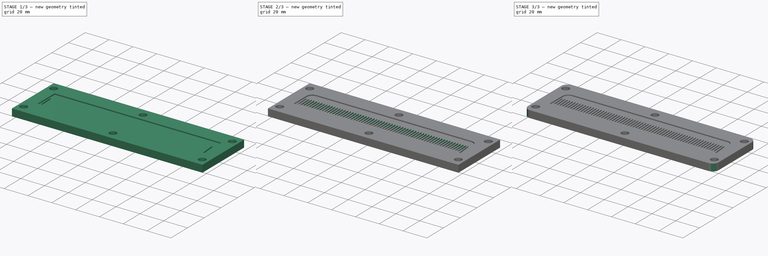
[diagram: build sequence overview — one tinted view per stage of 3, left to right]
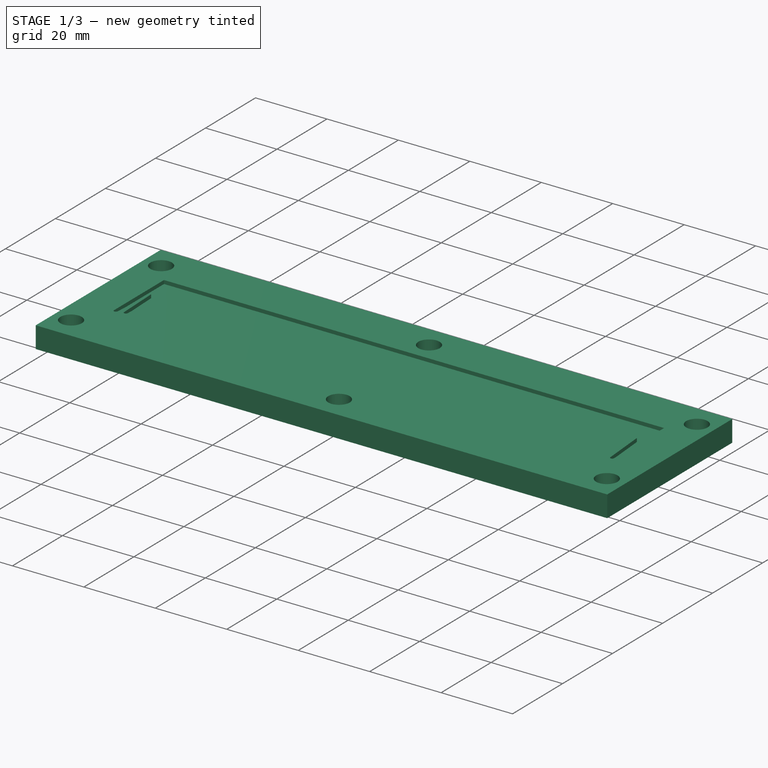
[diagram: stage 1 of 3 — iso view after this stage's code; geometry added in this stage tinted green]
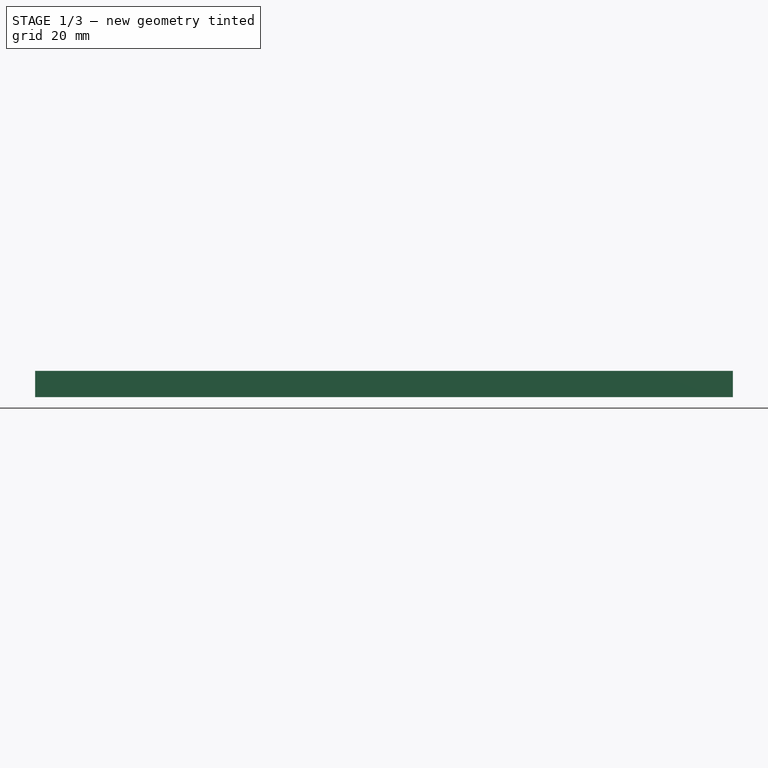
[diagram: stage 1 of 3 — front view after this stage's code; geometry added in this stage tinted green]
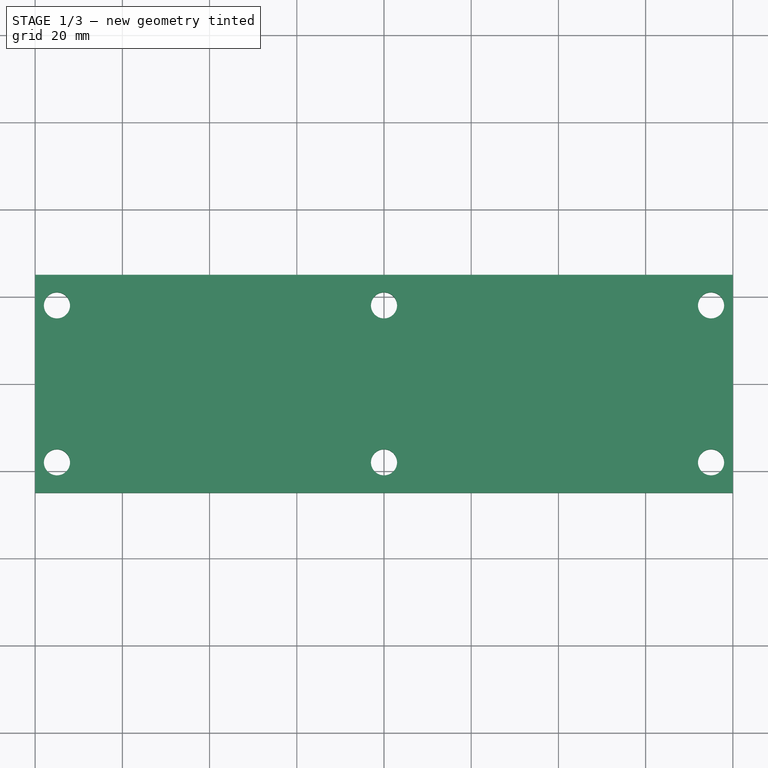
[diagram: stage 1 of 3 — top view after this stage's code; geometry added in this stage tinted green]
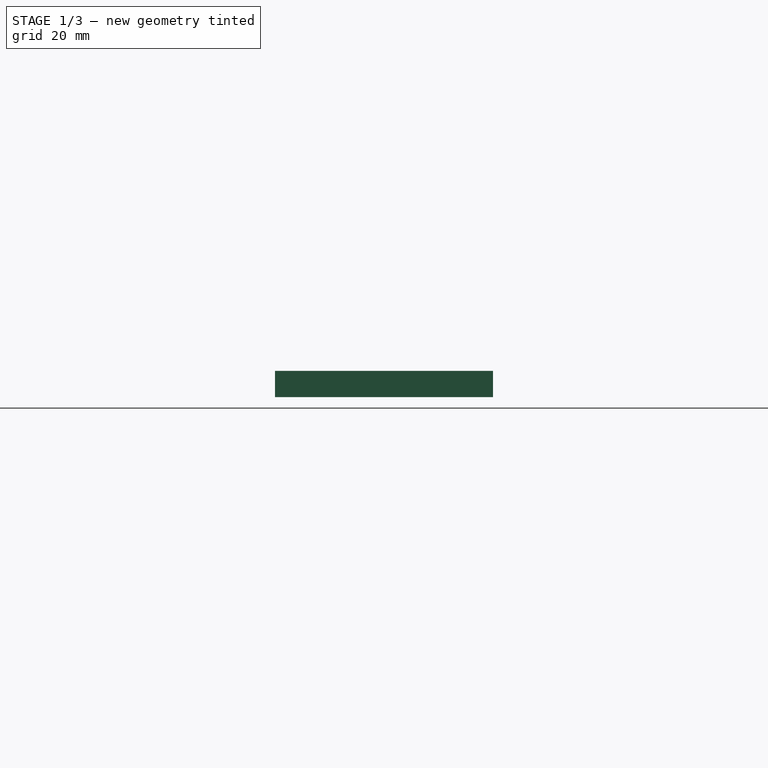
[diagram: stage 1 of 3 — right view after this stage's code; geometry added in this stage tinted green]
FCSTD DOCUMENT  (FreeCAD 0.19R24291 (Git))
Label: peigne
License: All rights reserved
LicenseURL: http://en.wikipedia.org/wiki/All_rights_reserved
objects: PartDesign::Fillet×4, Sketcher::SketchObject×3, PartDesign::Pocket×2, PartDesign::Pad×1, PartDesign::LinearPattern×1, PartDesign::Body×1
note: 19 computed .brp shape members not serialized (recipe doc carries the construction recipe); baked Part::Feature solids carry a one-line shape summary decoded from their .brp

FEATURE [Sketcher::SketchObject] Sketch
  FullyConstrained = true
  MapMode = 5
  Support = -> [XY_Plane]
  sketch-geometry (10):
    g0: LineSegment StartX=-80 StartY=25 StartZ=0 EndX=80 EndY=25 EndZ=0
    g1: LineSegment StartX=80 StartY=25 StartZ=0 EndX=80 EndY=-25 EndZ=0
    g2: LineSegment StartX=80 StartY=-25 StartZ=0 EndX=-80 EndY=-25 EndZ=0
    g3: LineSegment StartX=-80 StartY=-25 StartZ=0 EndX=-80 EndY=25 EndZ=0
    g4: Circle CenterX=-75 CenterY=18 CenterZ=0 NormalX=0 NormalY=0 NormalZ=1 AngleXU=0 Radius=3
    g5: Circle CenterX=75 CenterY=18 CenterZ=0 NormalX=0 NormalY=0 NormalZ=1 AngleXU=0 Radius=3
    g6: Circle CenterX=75 CenterY=-18 CenterZ=0 NormalX=0 NormalY=0 NormalZ=1 AngleXU=0 Radius=3
    g7: Circle CenterX=-75 CenterY=-18 CenterZ=0 NormalX=0 NormalY=0 NormalZ=1 AngleXU=0 Radius=3
    g8: Circle CenterX=0 CenterY=-18 CenterZ=0 NormalX=0 NormalY=0 NormalZ=1 AngleXU=0 Radius=3
    g9: Circle CenterX=0 CenterY=18 CenterZ=0 NormalX=0 NormalY=0 NormalZ=1 AngleXU=0 Radius=3
  constraints (27):
    c: Coincident(g0,g1)
    c: Coincident(g1,g2)
    c: Coincident(g2,g3)
    c: Coincident(g3,g0)
    c: Horizontal(g0)
    c: Horizontal(g2)
    c: Vertical(g1)
    c: Vertical(g3)
    c: Symmetric(g1,g0,g-1)
    c: DistanceY(g3,g3) = 50
    c: DistanceX(g0,g0) = 160
    c: PointOnObject(g8,g-2)
    c: PointOnObject(g9,g-2)
    c: Diameter(g4) = 6
    c: Equal(g4,g7)
    c: Equal(g4,g8)
    c: Equal(g4,g9)
    c: Equal(g4,g5)
    c: Equal(g4,g6)
    c: Symmetric(g4,g6,g-1)
    c: Symmetric(g7,g5,g-1)
    c: Horizontal(g4,g9)
    c: Horizontal(g9,g5)
    c: Horizontal(g7,g8)
    c: Vertical(g4,g7)
    c: DistanceY(g-1,g5) = 18
    c: DistanceX(g-1,g5) = 75
FEATURE [PartDesign::Pad] Pad
  Direction = (1,1,1)
  Length = 6
  Length2 = 100
  Profile = -> Sketch
  Type = 0
FEATURE [Sketcher::SketchObject] Sketch001
  FullyConstrained = true
  MapMode = 5
  Placement = pos=(0,0,6) rot=(0,0,1;0rad)
  Support = -> [Pad]
  sketch-geometry (8):
    g0: LineSegment StartX=-70 StartY=-8 StartZ=0 EndX=-70 EndY=12 EndZ=0
    g1: LineSegment StartX=-70 StartY=12 StartZ=0 EndX=70 EndY=12 EndZ=0
    g2: LineSegment StartX=70 StartY=12 StartZ=0 EndX=70 EndY=-8 EndZ=0
    g3: LineSegment StartX=68 StartY=4 StartZ=0 EndX=-68 EndY=4 EndZ=0
    g4: LineSegment StartX=-68 StartY=4 StartZ=0 EndX=-69.0017 EndY=-8.04145 EndZ=0
    g5: ArcOfCircle CenterX=-69.5 CenterY=-8 CenterZ=0 NormalX=0 NormalY=0 NormalZ=1 AngleXU=0 Radius=0.5 StartAngle=3.14159 EndAngle=6.20019
    g6: LineSegment StartX=68 StartY=4 StartZ=0 EndX=69.0017 EndY=-8.04145 EndZ=0
    g7: ArcOfCircle CenterX=69.5 CenterY=-8 CenterZ=0 NormalX=0 NormalY=0 NormalZ=1 AngleXU=0 Radius=0.5 StartAngle=3.22459 EndAngle=6.28319
  constraints (22):
    c: Vertical(g0)
    c: Coincident(g0,g1)
    c: Coincident(g1,g2)
    c: Horizontal(g0,g2)
    c: DistanceY(g0,g0) = 20
    c: Symmetric(g3,g3,g-2)
    c: Vertical(g2)
    c: Symmetric(g1,g0,g-2)
    c: DistanceX(g0,g3) = 2
    c: DistanceY(g3,g0) = 8
    c: DistanceX(g0,g-1) = 70
    c: Coincident(g3,g4)
    c: Diameter(g5) = 1
    c: Tangent(g5,g0) = 1.5708
    c: Tangent(g5,g4) = 1.5708
    c: Coincident(g6,g3)
    c: Coincident(g7,g6)
    c: Coincident(g7,g2)
    c: Tangent(g6,g7) = -1.5708
    c: Tangent(g2,g7) = 1.5708
    c: Diameter(g7) = 1
    c: DistanceY(g-1,g3) = 4
FEATURE [PartDesign::Pocket] Pocket
  BaseFeature = -> Pad
  Length = 1
  Length2 = 100
  Profile = -> Sketch001
  Type = 0
FEATURE [Sketcher::SketchObject] Sketch002
  FullyConstrained = true
  MapMode = 5
  Placement = pos=(0,0,6) rot=(0,0,1;0rad)
  sketch-geometry (4):
    g0: LineSegment StartX=-68 StartY=4 StartZ=0 EndX=-67.5 EndY=-7.5217 EndZ=0
    g1: LineSegment StartX=-68 StartY=4 StartZ=0 EndX=-66 EndY=4 EndZ=0
    g2: LineSegment StartX=-66 StartY=4 StartZ=0 EndX=-66.5 EndY=-7.5217 EndZ=0
    g3: ArcOfCircle CenterX=-67 CenterY=-7.5 CenterZ=0 NormalX=0 NormalY=0 NormalZ=1 AngleXU=0 Radius=0.500471 StartAngle=3.18496 EndAngle=6.23982
  constraints (11):
    c: Coincident(g0,g1)
    c: Coincident(g1,g2)
    c: Horizontal(g1)
    c: DistanceX(g1,g1) = 2
    c: DistanceX(g0,g3) = 1
    c: DistanceX(g1,g-1) = 66
    c: Tangent(g3,g0) = -1.5708
    c: Tangent(g3,g2) = 1.5708
    c: DistanceX(g0,g2) = 1
    c: DistanceY(g3,g1) = 11.5
    c: DistanceY(g-1,g1) = 4
FEATURE [PartDesign::Pocket] Pocket001
  BaseFeature = -> Pocket
  Length = 1
  Length2 = 100
  Profile = -> Sketch002
  Type = 0
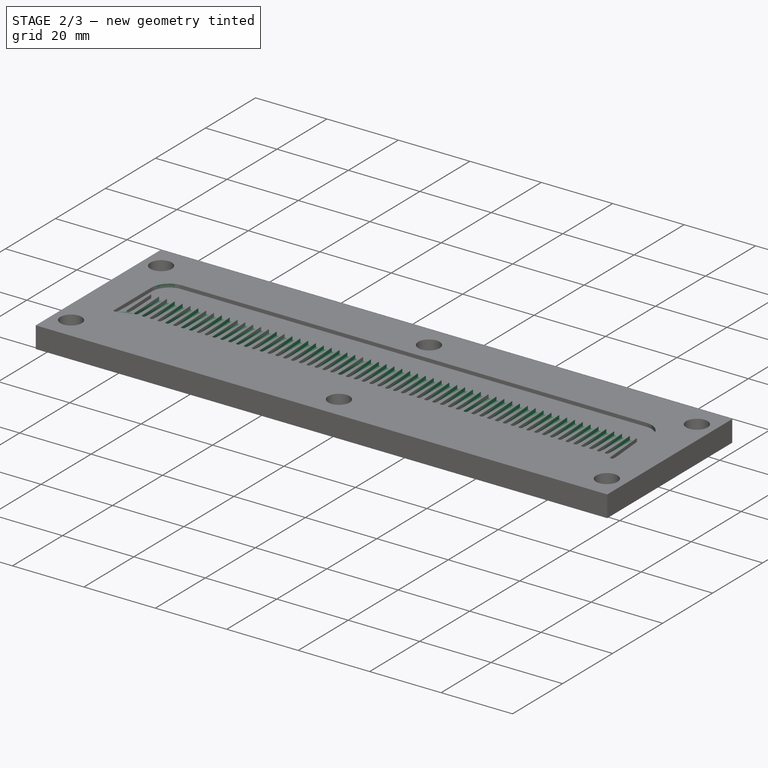
[diagram: stage 2 of 3 — iso view after this stage's code; geometry added in this stage tinted green]
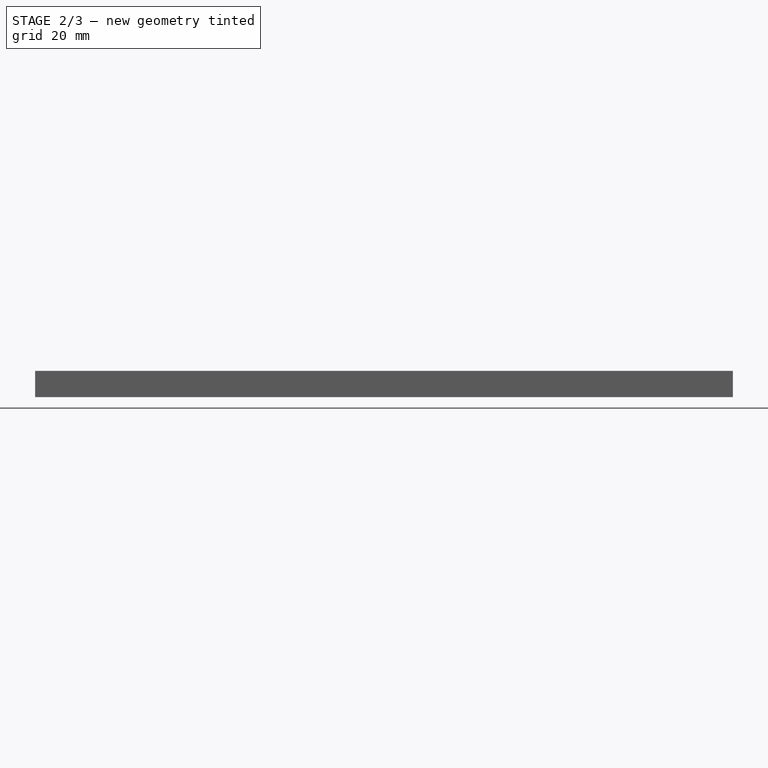
[diagram: stage 2 of 3 — front view after this stage's code; geometry added in this stage tinted green]
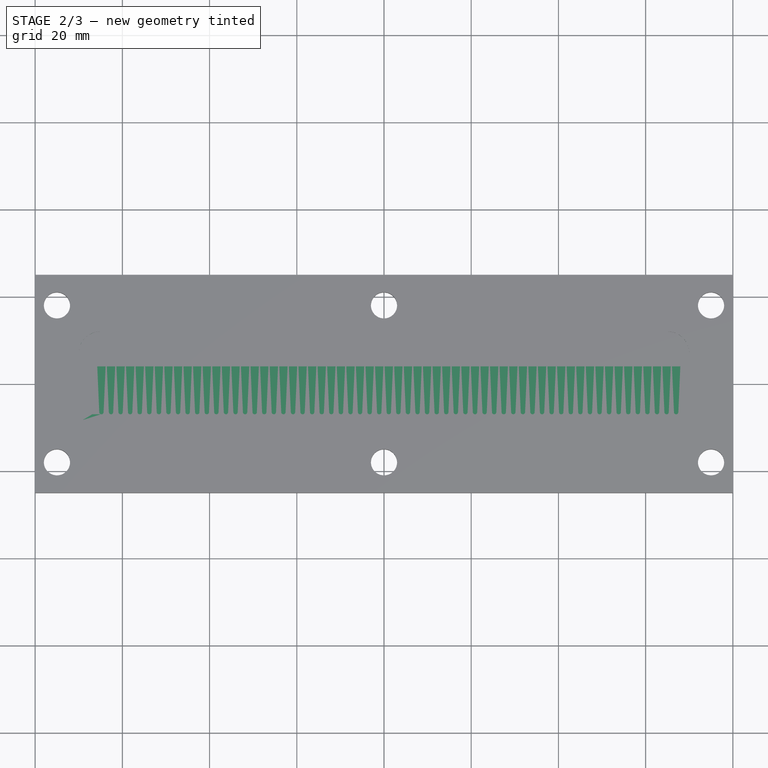
[diagram: stage 2 of 3 — top view after this stage's code; geometry added in this stage tinted green]
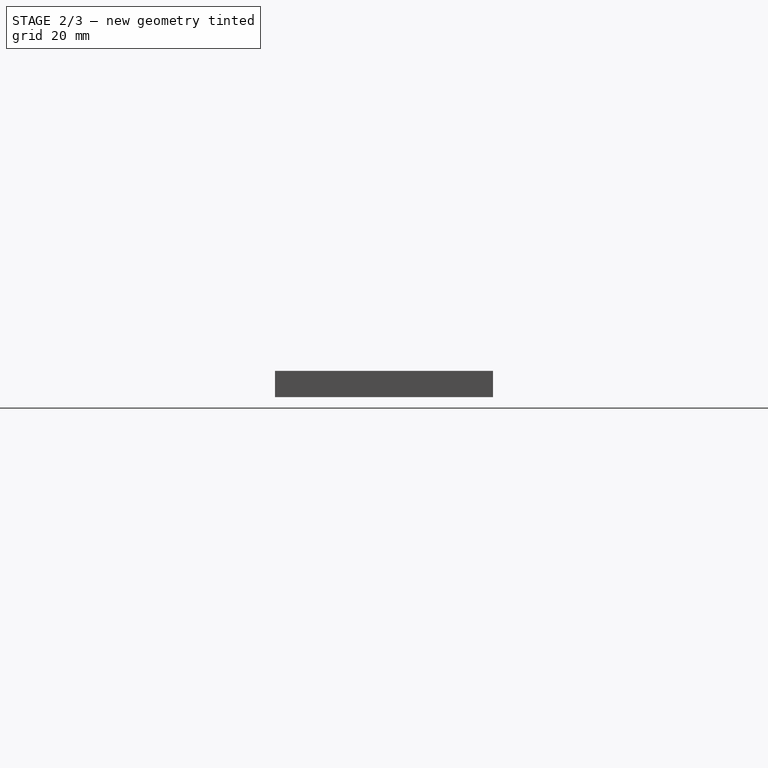
[diagram: stage 2 of 3 — right view after this stage's code; geometry added in this stage tinted green]
FEATURE [PartDesign::LinearPattern] LinearPattern
  BaseFeature = -> Pocket001
  Direction = -> Sketch002 [H_Axis]
  Length = 134
  Occurrences = 62
  Originals = -> [Pocket001]
FEATURE [PartDesign::Fillet] Fillet
  Base = -> LinearPattern [Edge790,Edge792]
  BaseFeature = -> LinearPattern
  Radius = 5
  SupportTransform = false
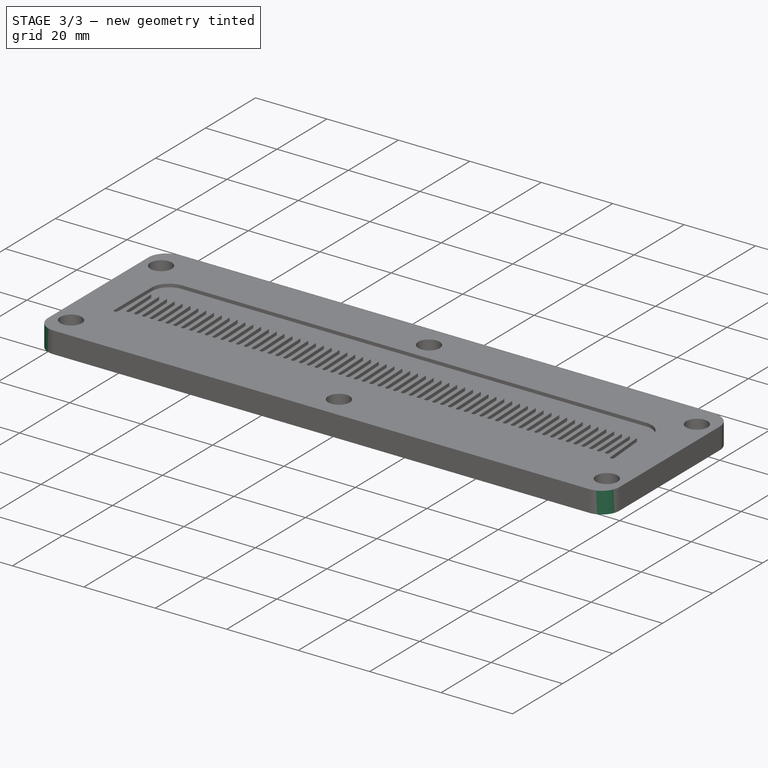
[diagram: stage 3 of 3 — iso view after this stage's code; geometry added in this stage tinted green]
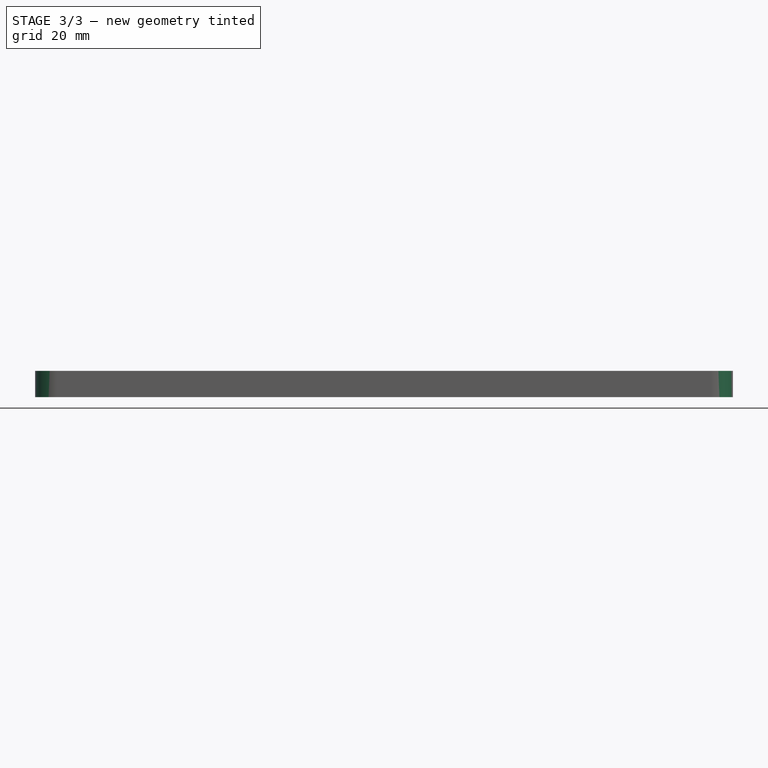
[diagram: stage 3 of 3 — front view after this stage's code; geometry added in this stage tinted green]
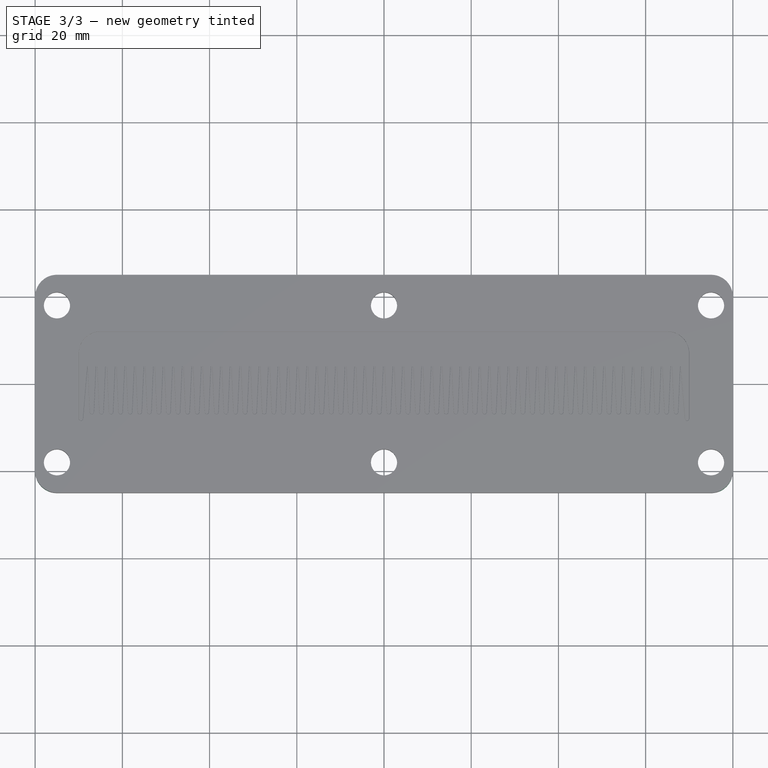
[diagram: stage 3 of 3 — top view after this stage's code; geometry added in this stage tinted green]
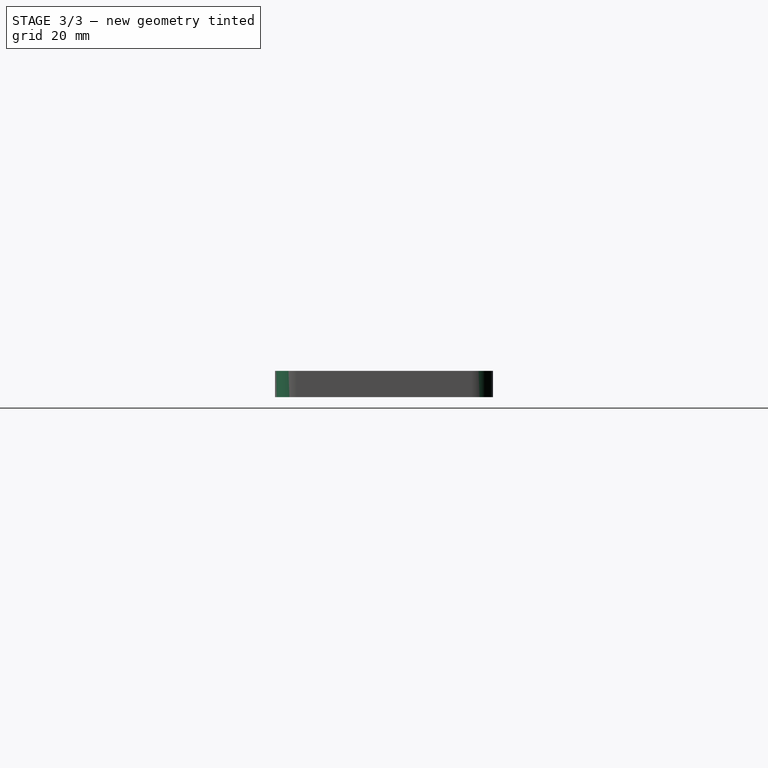
[diagram: stage 3 of 3 — right view after this stage's code; geometry added in this stage tinted green]
FEATURE [PartDesign::Fillet] Fillet001
  Base = -> Fillet [Edge785,Edge788,Edge790,Edge786]
  BaseFeature = -> Fillet
  Radius = 5
  SupportTransform = false
FEATURE [PartDesign::Fillet] Fillet002
  Base = -> Fillet001 [Edge291,Edge293,Edge297,Edge301,Edge305]
  BaseFeature = -> Fillet001
  Radius = 0.1
  SupportTransform = false
FEATURE [PartDesign::Fillet] Fillet003
  Base = -> Fillet002 [Edge607,Edge600,Edge593,Edge586,Edge578,Edge571,Edge614,Edge621,Edge628,Edge635,Edge642,Edge649,Edge656,Edge663,Edge670,Edge677,Edge684,Edge691,Edge698,Edge705,Edge712,Edge719,Edge726,Edge733,Edge740,Edge747,Edge754,Edge761,Edge768,Edge775,Edge782,Edge789,Edge796,Edge803,Edge810,Edge817,Edge824,Edge831,Edge838,Edge845,+146 more]
  BaseFeature = -> Fillet002
  Radius = 0.1
  SupportTransform = false
FEATURE [PartDesign::Body] Body
  Group = -> [Sketch,Pad,Sketch001,Pocket,Sketch002,Pocket001,LinearPattern,Fillet,Fillet001,Fillet002,Fillet003]
  Origin = -> Origin
  Tip = -> Fillet003
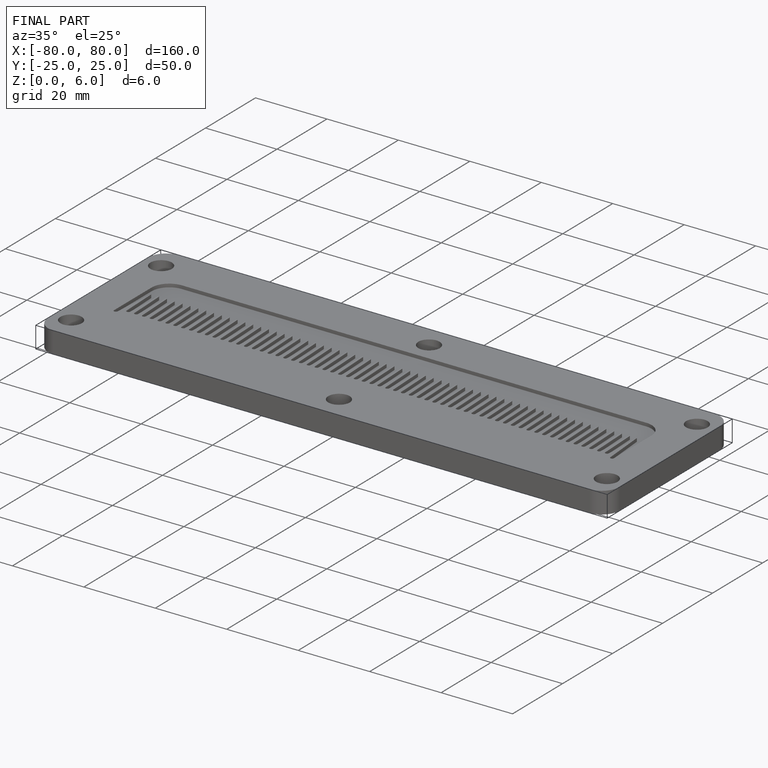
[diagram: finished part — iso view with bounding-box wireframe]
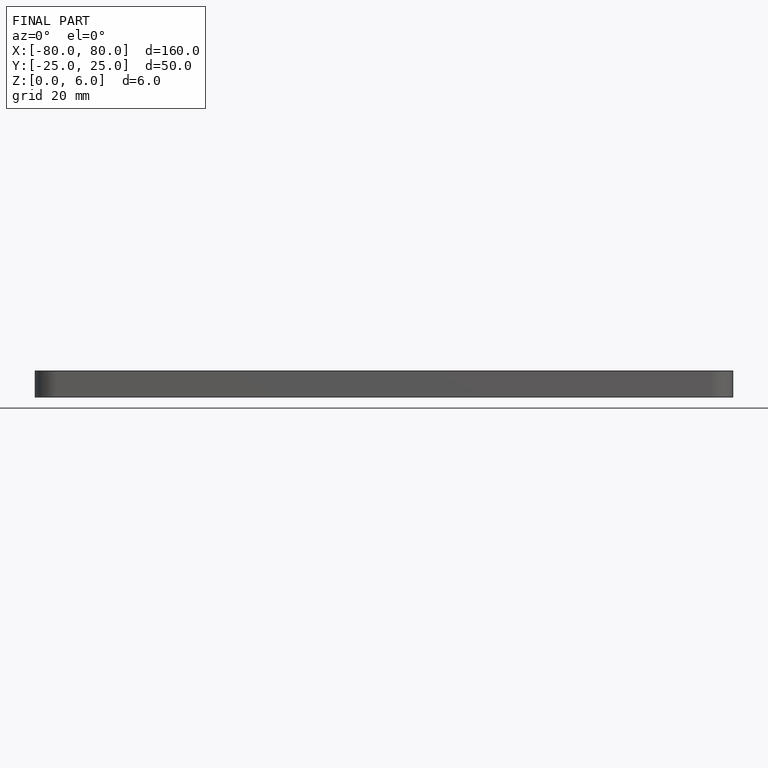
[diagram: finished part — front view with bounding-box wireframe]
